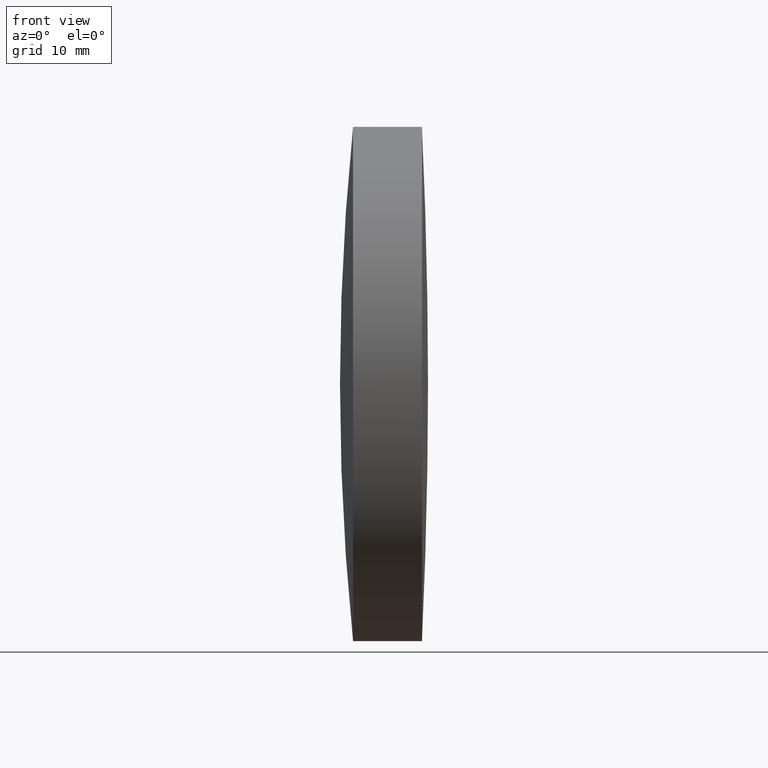
[diagram: clean part render]
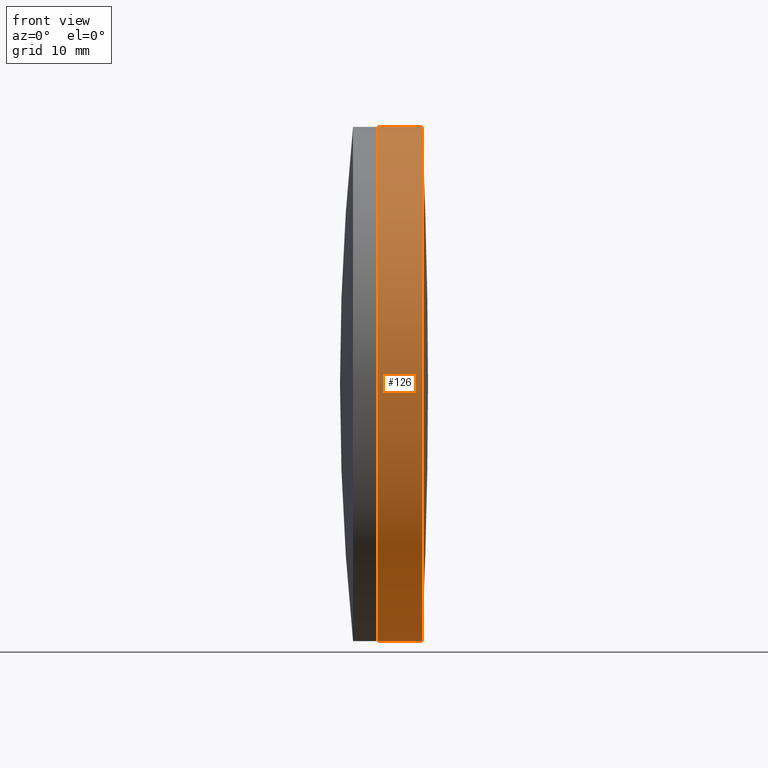
[diagram: same view with one face highlighted and labeled with its STEP entity id]
A machine part, front view. The second image highlights one B-rep face of the part: STEP entity #126.
In plain terms, the highlighted cylindrical surface (partial cylindrical patch) has radius 25 mm, axis along (-1, -0, -0).
Its self-contained STEP definition (entity closure, byte-faithful):
#2 = EDGE_CURVE ( 'NONE', #116, #27, #72, .T. ) ;
#13 = VERTEX_POINT ( 'NONE', #330 ) ;
#27 = VERTEX_POINT ( 'NONE', #272 ) ;
#35 = VECTOR ( 'NONE', #296, 1000.000000000000000 ) ;
#49 = EDGE_CURVE ( 'NONE', #138, #13, #169, .T. ) ;
#58 = CARTESIAN_POINT ( 'NONE',  ( -0.5519199926577972300, 3.061616997868370000E-015, -24.99999999999989300 ) ) ;
#72 = CIRCLE ( 'NONE', #200, 24.99999999999968000 ) ;
#83 = DIRECTION ( 'NONE',  ( -1.000000000000000000, -0.0000000000000000000, -0.0000000000000000000 ) ) ;
#108 = ORIENTED_EDGE ( 'NONE', *, *, #220, .F. ) ;
#111 = VECTOR ( 'NONE', #83, 1000.000000000000000 ) ;
#116 = VERTEX_POINT ( 'NONE', #260 ) ;
#121 = FACE_OUTER_BOUND ( 'NONE', #164, .T. ) ;
#126 = ADVANCED_FACE ( 'NONE', ( #121 ), #304, .T. ) ;
#127 = ORIENTED_EDGE ( 'NONE', *, *, #49, .F. ) ;
#136 = CARTESIAN_POINT ( 'NONE',  ( 262.3933440983366300, 0.0000000000000000000, 0.0000000000000000000 ) ) ;
#138 = VERTEX_POINT ( 'NONE', #321 ) ;
#140 = CARTESIAN_POINT ( 'NONE',  ( 266.7418359624271600, 0.0000000000000000000, 0.0000000000000000000 ) ) ;
#141 = DIRECTION ( 'NONE',  ( 0.0000000000000000000, 0.0000000000000000000, 1.000000000000000000 ) ) ;
#149 = AXIS2_PLACEMENT_3D ( 'NONE', #195, #158, #141 ) ;
#150 = LINE ( 'NONE', #165, #35 ) ;
#158 = DIRECTION ( 'NONE',  ( -1.000000000000000000, -0.0000000000000000000, -0.0000000000000000000 ) ) ;
#164 = EDGE_LOOP ( 'NONE', ( #108, #172, #283, #127 ) ) ;
#165 = CARTESIAN_POINT ( 'NONE',  ( -0.5519199926577972300, 0.0000000000000000000, 24.99999999999989300 ) ) ;
#169 = CIRCLE ( 'NONE', #205, 25.00000000000011000 ) ;
#172 = ORIENTED_EDGE ( 'NONE', *, *, #2, .T. ) ;
#195 = CARTESIAN_POINT ( 'NONE',  ( -0.5519199926577972300, 0.0000000000000000000, 0.0000000000000000000 ) ) ;
#198 = LINE ( 'NONE', #58, #111 ) ;
#200 = AXIS2_PLACEMENT_3D ( 'NONE', #140, #248, #212 ) ;
#205 = AXIS2_PLACEMENT_3D ( 'NONE', #136, #217, #285 ) ;
#212 = DIRECTION ( 'NONE',  ( 0.0000000000000000000, 0.0000000000000000000, 1.000000000000000000 ) ) ;
#217 = DIRECTION ( 'NONE',  ( -1.000000000000000000, -0.0000000000000000000, -0.0000000000000000000 ) ) ;
#220 = EDGE_CURVE ( 'NONE', #116, #138, #198, .T. ) ;
#248 = DIRECTION ( 'NONE',  ( -1.000000000000000000, -0.0000000000000000000, -0.0000000000000000000 ) ) ;
#260 = CARTESIAN_POINT ( 'NONE',  ( 266.7418359624271600, 3.061616997868357000E-015, -24.99999999999968000 ) ) ;
#272 = CARTESIAN_POINT ( 'NONE',  ( 266.7418359624271600, 0.0000000000000000000, 24.99999999999968000 ) ) ;
#283 = ORIENTED_EDGE ( 'NONE', *, *, #312, .T. ) ;
#285 = DIRECTION ( 'NONE',  ( 0.0000000000000000000, 0.0000000000000000000, 1.000000000000000000 ) ) ;
#296 = DIRECTION ( 'NONE',  ( -1.000000000000000000, -0.0000000000000000000, -0.0000000000000000000 ) ) ;
#304 = CYLINDRICAL_SURFACE ( 'NONE', #149, 24.99999999999989300 ) ;
#312 = EDGE_CURVE ( 'NONE', #27, #13, #150, .T. ) ;
#321 = CARTESIAN_POINT ( 'NONE',  ( 262.3933440983366300, 3.061616997868401600E-015, -24.99999999999989700 ) ) ;
#330 = CARTESIAN_POINT ( 'NONE',  ( 262.3933440983366300, 0.0000000000000000000, 25.00000000000015300 ) ) ;